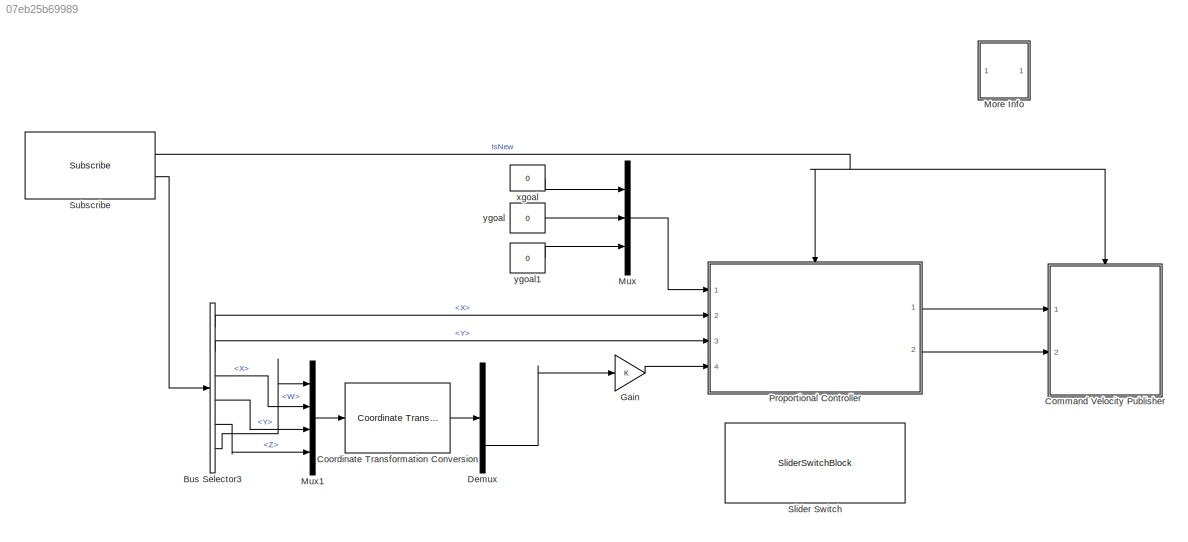
MODEL slx_07eb25b69989
KIND model
CONFIG AbsTol = auto
CONFIG EnableMultiTasking = on
CONFIG FixedStep = 0.02
CONFIG MaxStep = auto
CONFIG MinStep = auto
CONFIG RelTol = 1e-3
CONFIG SampleTimeConstraint = Unconstrained
CONFIG Solver = FixedStepDiscrete
CONFIG SolverName = FixedStepDiscrete
CONFIG StartTime = 0.0
CONFIG StopTime = inf
BLOCK [BusSelector] Bus Selector3
  OutputSignals = Pose.Pose.Position.X,Pose.Pose.Position.Y,Pose.Pose.Orientation.X,Pose.Pose.Orientation.Y,Pose.Pose.Orientation.Z,Pose.Pose.Orientation.W
  Ports = [1, 6]
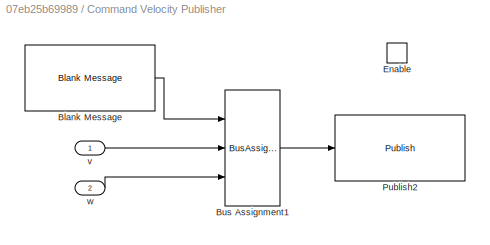
BLOCK [SubSystem] Command Velocity Publisher
  Ports = [2, 0, 1]
  RequestExecContextInheritance = off
BLOCK [Reference] Command Velocity Publisher/Blank Message  REF=robotlib/Blank Message
  Ports = [0, 1]
  SourceBlock = robotlib/Blank Message
  SourceProductBaseCode = RR
  SourceType = ROS Blank Message
BLOCK [BusAssignment] Command Velocity Publisher/Bus Assignment1
  AssignedSignals = Linear.X,Angular.Z
  DialogController = Simulink.DDGSource_BusAssignment
  Ports = [3, 1]
BLOCK [EnablePort] Command Velocity Publisher/Enable
  Ports = []
BLOCK [Reference] Command Velocity Publisher/Publish2  REF=robotlib/Publish
  AttributesFormatString = %<messageType>
  Ports = [1]
  SourceBlock = robotlib/Publish
  SourceProductBaseCode = RR
  SourceType = ROS Publish
BLOCK [Inport] Command Velocity Publisher/v
BLOCK [Inport] Command Velocity Publisher/w
  Port = 2
BLOCK [Reference] Coordinate Transformation Conversion  REF=robotcorelib/Coordinate Transformation Conversion
  Ports = [1, 1]
  SourceBlock = robotcorelib/Coordinate Transformation Conversion
  SourceProductBaseCode = NV,RO,RR
  SourceType = robotics.slcore.internal.block.CoordinateTransformationConversion
BLOCK [Demux] Demux
  Outputs = 3
  Ports = [1, 3]
BLOCK [Gain] Gain
BLOCK [SubSystem] More Info
  OpenFcn = showdemo(bdroot(gcb))
  Ports = []
  RequestExecContextInheritance = off
BLOCK [Mux] Mux
  DisplayOption = bar
  Inputs = 3
  Ports = [3, 1]
BLOCK [Mux] Mux1
  DisplayOption = bar
  Ports = [4, 1]
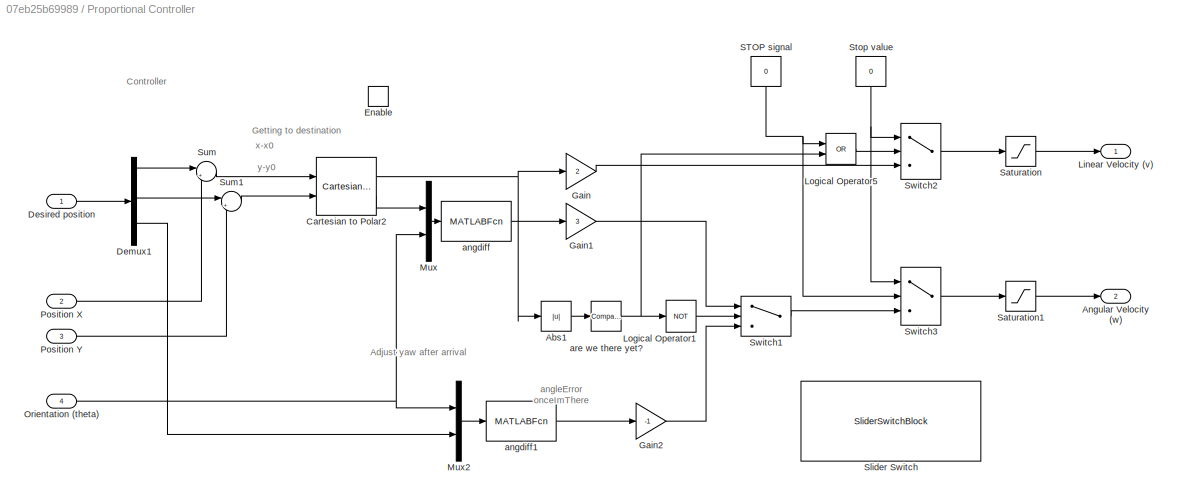
BLOCK [SubSystem] Proportional Controller
  Ports = [4, 2, 1]
  RequestExecContextInheritance = off
BLOCK [Abs] Proportional Controller/Abs1
  SaturateOnIntegerOverflow = off
BLOCK [Outport] Proportional Controller/Angular Velocity (w)
  Port = 2
  VectorParamsAs1DForOutWhenUnconnected = off
BLOCK [Reference] Proportional Controller/Cartesian to Polar2  REF=simulink_extras/Transformations/Cartesian to
Polar
  Ports = [2, 2]
  SourceBlock = simulink_extras/Transformations/Cartesian to\nPolar
  SourceProductBaseCode = SL
  SourceType = Cart2Polar
BLOCK [Demux] Proportional Controller/Demux1
  Outputs = 3
  Ports = [1, 3]
BLOCK [Inport] Proportional Controller/Desired position
BLOCK [EnablePort] Proportional Controller/Enable
  Ports = []
BLOCK [Gain] Proportional Controller/Gain
  Gain = 2
BLOCK [Gain] Proportional Controller/Gain1
  Gain = 3
BLOCK [Gain] Proportional Controller/Gain2
  Gain = -1
BLOCK [Outport] Proportional Controller/Linear Velocity (v)
  VectorParamsAs1DForOutWhenUnconnected = off
BLOCK [Logic] Proportional Controller/Logical Operator1
  AllPortsSameDT = off
  Operator = NOT
  OutDataTypeStr = boolean
  Ports = [1, 1]
BLOCK [Logic] Proportional Controller/Logical Operator5
  AllPortsSameDT = off
  Operator = OR
  OutDataTypeStr = boolean
  Ports = [2, 1]
BLOCK [Mux] Proportional Controller/Mux
  DisplayOption = bar
  Inputs = 2
  Ports = [2, 1]
BLOCK [Mux] Proportional Controller/Mux2
  DisplayOption = bar
  Inputs = 2
  Ports = [2, 1]
BLOCK [Inport] Proportional Controller/Orientation (theta)
  Port = 4
BLOCK [Inport] Proportional Controller/Position X
  Port = 2
BLOCK [Inport] Proportional Controller/Position Y
  Port = 3
BLOCK [Constant] Proportional Controller/STOP signal 
  NameLocation = left
  Value = 0
BLOCK [Saturate] Proportional Controller/Saturation
  LinearizeAsGain = off
  LowerLimit = -0.3
  UpperLimit = 0.3
BLOCK [Saturate] Proportional Controller/Saturation1
  LinearizeAsGain = off
  LowerLimit = -999
  UpperLimit = 999
BLOCK [SliderSwitchBlock] Proportional Controller/Slider Switch
BLOCK [Constant] Proportional Controller/Stop value
  NameLocation = left
  Value = 0
BLOCK [Sum] Proportional Controller/Sum
  Inputs = |+-
  Ports = [2, 1]
BLOCK [Sum] Proportional Controller/Sum1
  Inputs = |+-
  Ports = [2, 1]
BLOCK [Switch] Proportional Controller/Switch1
  Criteria = u2 ~= 0
  InputSameDT = off
  SaturateOnIntegerOverflow = off
BLOCK [Switch] Proportional Controller/Switch2
  Criteria = u2 ~= 0
  InputSameDT = off
  SaturateOnIntegerOverflow = off
BLOCK [Switch] Proportional Controller/Switch3
  Criteria = u2 ~= 0
  InputSameDT = off
  SaturateOnIntegerOverflow = off
BLOCK [MATLABFcn] Proportional Controller/angdiff
  MATLABFcn = angdiff(u(2), u(1))
  Output1D = off
  OutputDimensions = 1
  Ports = [1, 1]
BLOCK [MATLABFcn] Proportional Controller/angdiff1
  MATLABFcn = angdiff(u(2), u(1))
  Output1D = off
  OutputDimensions = 1
  Ports = [1, 1]
BLOCK [Reference] Proportional Controller/are we there yet?  REF=simulink/Logic and Bit
Operations/Compare
To Constant
  NameLocation = top
  Ports = [1, 1]
  SourceBlock = simulink/Logic and Bit\nOperations/Compare\nTo Constant
  SourceProductBaseCode = SL
  SourceType = Compare To Constant
BLOCK [SliderSwitchBlock] Slider Switch
BLOCK [Reference] Subscribe  REF=robotlib/Subscribe
  Ports = [0, 2]
  SourceBlock = robotlib/Subscribe
  SourceProductBaseCode = RR
  SourceType = ROS Subscribe
BLOCK [Constant] xgoal
  Value = 0
BLOCK [Constant] ygoal
  Value = 0
BLOCK [Constant] ygoal1
  Value = 0
ANNOTATION Proportional Controller: angleError onceImThere
ANNOTATION Proportional Controller: Controller
ANNOTATION Proportional Controller: Adjust yaw after arrival
ANNOTATION Proportional Controller: Getting to destination
ANNOTATION Proportional Controller: x-x0
ANNOTATION Proportional Controller: y-y0
LINE Bus Selector3:1 -> Proportional Controller:2
LINE Bus Selector3:2 -> Proportional Controller:3
LINE Bus Selector3:3 -> Mux1:2
LINE Bus Selector3:4 -> Mux1:3
LINE Bus Selector3:5 -> Mux1:4
LINE Bus Selector3:6 -> Mux1:1
LINE Command Velocity Publisher/Blank Message:1 -> Command Velocity Publisher/Bus Assignment1:1
LINE Command Velocity Publisher/Bus Assignment1:1 -> Command Velocity Publisher/Publish2:1
LINE Command Velocity Publisher/v:1 -> Command Velocity Publisher/Bus Assignment1:2
LINE Command Velocity Publisher/w:1 -> Command Velocity Publisher/Bus Assignment1:3
LINE Coordinate Transformation Conversion:1 -> Demux:1
LINE Demux:3 -> Gain:1
LINE Gain:1 -> Proportional Controller:4
LINE Mux1:1 -> Coordinate Transformation Conversion:1
LINE Mux:1 -> Proportional Controller:1
LINE Proportional Controller/Abs1:1 -> Proportional Controller/are we there yet?:1
NET Proportional Controller/Cartesian to Polar2:1 -> Proportional Controller/Abs1:1, Proportional Controller/Gain:1
LINE Proportional Controller/Cartesian to Polar2:2 -> Proportional Controller/Mux:1
LINE Proportional Controller/Demux1:1 -> Proportional Controller/Sum:1
LINE Proportional Controller/Demux1:2 -> Proportional Controller/Sum1:1
LINE Proportional Controller/Demux1:3 -> Proportional Controller/Mux2:2
LINE Proportional Controller/Desired position:1 -> Proportional Controller/Demux1:1
LINE Proportional Controller/Gain1:1 -> Proportional Controller/Switch1:1
LINE Proportional Controller/Gain2:1 -> Proportional Controller/Switch1:3
LINE Proportional Controller/Gain:1 -> Proportional Controller/Switch2:3
LINE Proportional Controller/Logical Operator1:1 -> Proportional Controller/Switch1:2
LINE Proportional Controller/Logical Operator5:1 -> Proportional Controller/Switch2:2
LINE Proportional Controller/Mux2:1 -> Proportional Controller/angdiff1:1
LINE Proportional Controller/Mux:1 -> Proportional Controller/angdiff:1
NET Proportional Controller/Orientation (theta):1 -> Proportional Controller/Mux2:1, Proportional Controller/Mux:2
LINE Proportional Controller/Position X:1 -> Proportional Controller/Sum:2
LINE Proportional Controller/Position Y:1 -> Proportional Controller/Sum1:2
NET Proportional Controller/STOP signal :1 -> Proportional Controller/Logical Operator5:1, Proportional Controller/Switch3:2
LINE Proportional Controller/Saturation1:1 -> Proportional Controller/Angular Velocity (w):1
LINE Proportional Controller/Saturation:1 -> Proportional Controller/Linear Velocity (v):1
NET Proportional Controller/Stop value:1 -> Proportional Controller/Switch2:1, Proportional Controller/Switch3:1
LINE Proportional Controller/Sum1:1 -> Proportional Controller/Cartesian to Polar2:2
LINE Proportional Controller/Sum:1 -> Proportional Controller/Cartesian to Polar2:1
LINE Proportional Controller/Switch1:1 -> Proportional Controller/Switch3:3
LINE Proportional Controller/Switch2:1 -> Proportional Controller/Saturation:1
LINE Proportional Controller/Switch3:1 -> Proportional Controller/Saturation1:1
LINE Proportional Controller/angdiff1:1 -> Proportional Controller/Gain2:1
LINE Proportional Controller/angdiff:1 -> Proportional Controller/Gain1:1
NET Proportional Controller/are we there yet?:1 -> Proportional Controller/Logical Operator1:1, Proportional Controller/Logical Operator5:2
LINE Proportional Controller:1 -> Command Velocity Publisher:1
LINE Proportional Controller:2 -> Command Velocity Publisher:2
NET Subscribe:1 -> Command Velocity Publisher:enable, Proportional Controller:enable
LINE Subscribe:2 -> Bus Selector3:1
LINE xgoal:1 -> Mux:1
LINE ygoal1:1 -> Mux:3
LINE ygoal:1 -> Mux:2
note: NET lines group one-source signal fan-out (src -> all destinations, sorted); 1:1 wires keep LINE
